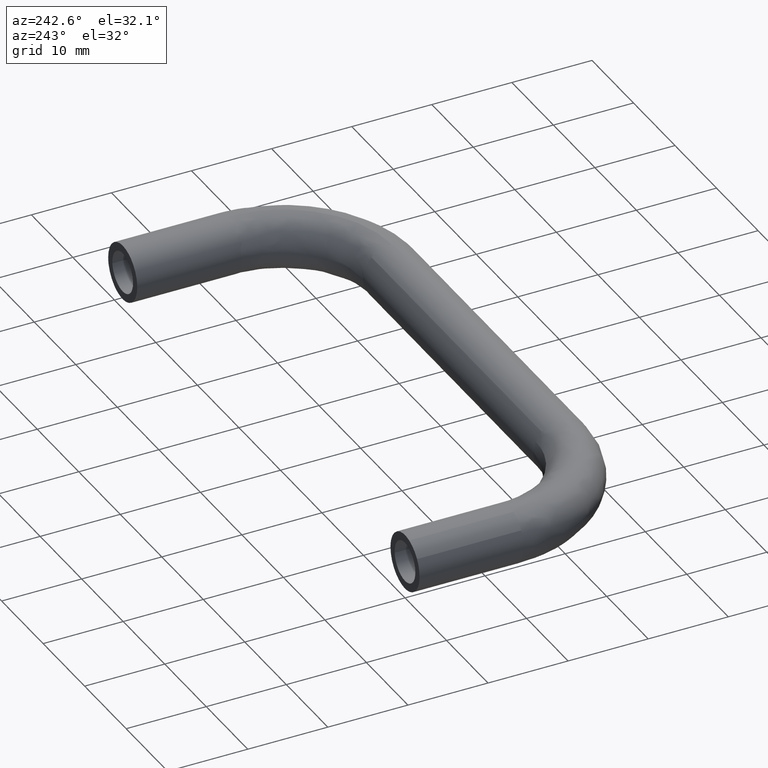
[diagram: clean part render]
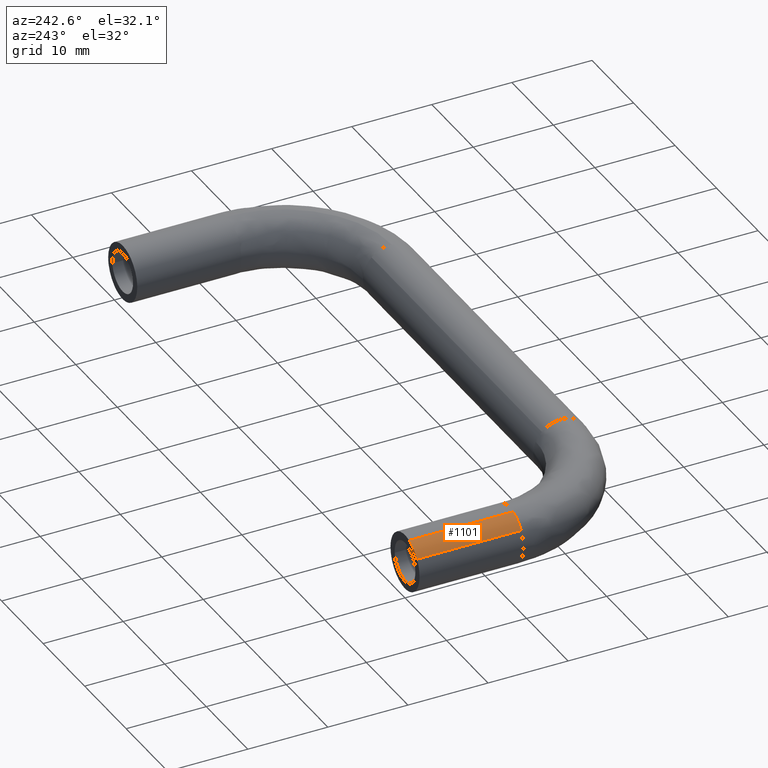
[diagram: same view with one face highlighted and labeled with its STEP entity id]
A machine part, auxiliary view. The second image highlights one B-rep face of the part: STEP entity #1101.
In plain terms, the highlighted face is a freeform B-spline surface patch.
Its self-contained STEP definition (entity closure, byte-faithful):
#914=CARTESIAN_POINT('',(-2.895085452633775,-13.0,1.966845246059861));
#915=VERTEX_POINT('',#914);
#929=CARTESIAN_POINT('',(-2.895085452633777,4.865631E-016,1.966845246059861));
#930=VERTEX_POINT('',#929);
#931=CARTESIAN_POINT('',(-2.895085452633777,4.865631E-016,1.966845246059861));
#932=CARTESIAN_POINT('',(-2.895085452633775,-13.0,1.966845246059861));
#933=QUASI_UNIFORM_CURVE('',1,(#931,#932),.UNSPECIFIED.,.F.,.U.);
#934=EDGE_CURVE('',#930,#915,#933,.T.);
#968=CARTESIAN_POINT('',(-0.994053706532481,-1.110223E-016,3.355869072018310));
#969=VERTEX_POINT('',#968);
#985=CARTESIAN_POINT('',(-0.994053706532479,-13.0,3.355869072018310));
#986=VERTEX_POINT('',#985);
#987=CARTESIAN_POINT('',(-0.994053706532481,-1.110223E-016,3.355869072018310));
#988=CARTESIAN_POINT('',(-0.994053706532479,-13.0,3.355869072018310));
#989=QUASI_UNIFORM_CURVE('',1,(#987,#988),.UNSPECIFIED.,.F.,.U.);
#990=EDGE_CURVE('',#969,#986,#989,.T.);
#1057=CARTESIAN_POINT('',(-0.994053706463729,0.325000000007673,3.355869072038674));
#1058=CARTESIAN_POINT('',(-2.192617683541398,0.325000000007673,3.000838247452848));
#1059=CARTESIAN_POINT('',(-2.895085452636256,0.325000000007673,1.966845246056211));
#1060=CARTESIAN_POINT('',(-0.994053706463727,-13.333125000314750,3.355869072038674));
#1061=CARTESIAN_POINT('',(-2.192617683541397,-13.333125000314752,3.000838247452848));
#1062=CARTESIAN_POINT('',(-2.895085452636255,-13.333125000314753,1.966845246056211));
#1070=(BOUNDED_SURFACE()B_SPLINE_SURFACE(2,1,((#1057,#1060),(#1058,#1061),(#1059,#1062)),.UNSPECIFIED.,.F.,.F.,.U.)B_SPLINE_SURFACE_WITH_KNOTS((3,3),(2,2),(0.0,2.545267081620916),(0.0,13.658125000322430),.UNSPECIFIED.)GEOMETRIC_REPRESENTATION_ITEM()RATIONAL_B_SPLINE_SURFACE(((1.0,1.0),(0.871126983722081,0.871126983722081),(0.855662221768731,0.855662221768731)))REPRESENTATION_ITEM('')SURFACE());
#1071=CARTESIAN_POINT('',(-2.895085452633776,-13.000000000000002,1.966845246059861));
#1072=CARTESIAN_POINT('',(-2.192617683582059,-12.999999999999993,3.000838247387388));
#1073=CARTESIAN_POINT('',(-0.994053706532479,-13.000000000000004,3.355869072018310));
#1081=(BOUNDED_CURVE()B_SPLINE_CURVE(2,(#1071,#1072,#1073),.UNSPECIFIED.,.F.,.U.)B_SPLINE_CURVE_WITH_KNOTS((3,3),(0.596450219094872,0.701641517058892),.UNSPECIFIED.)CURVE()GEOMETRIC_REPRESENTATION_ITEM()RATIONAL_B_SPLINE_CURVE((0.861192889176150,0.833045255595442,0.908607213370600))REPRESENTATION_ITEM(''));
#1082=EDGE_CURVE('',#915,#986,#1081,.T.);
#1083=ORIENTED_EDGE('',*,*,#1082,.T.);
#1084=ORIENTED_EDGE('',*,*,#990,.F.);
#1085=CARTESIAN_POINT('',(-2.895085452633777,4.865631E-016,1.966845246059861));
#1086=CARTESIAN_POINT('',(-2.192617683582060,0.0,3.000838247387388));
#1087=CARTESIAN_POINT('',(-0.994053706532481,-1.110223E-016,3.355869072018310));
#1095=(BOUNDED_CURVE()B_SPLINE_CURVE(2,(#1085,#1086,#1087),.UNSPECIFIED.,.F.,.U.)B_SPLINE_CURVE_WITH_KNOTS((3,3),(0.596450219094872,0.701641517058892),.UNSPECIFIED.)CURVE()GEOMETRIC_REPRESENTATION_ITEM()RATIONAL_B_SPLINE_CURVE((0.861192889176150,0.833045255595442,0.908607213370600))REPRESENTATION_ITEM(''));
#1096=EDGE_CURVE('',#930,#969,#1095,.T.);
#1097=ORIENTED_EDGE('',*,*,#1096,.F.);
#1098=ORIENTED_EDGE('',*,*,#934,.T.);
#1099=EDGE_LOOP('',(#1083,#1084,#1097,#1098));
#1100=FACE_OUTER_BOUND('',#1099,.T.);
#1101=ADVANCED_FACE('',(#1100),#1070,.T.);